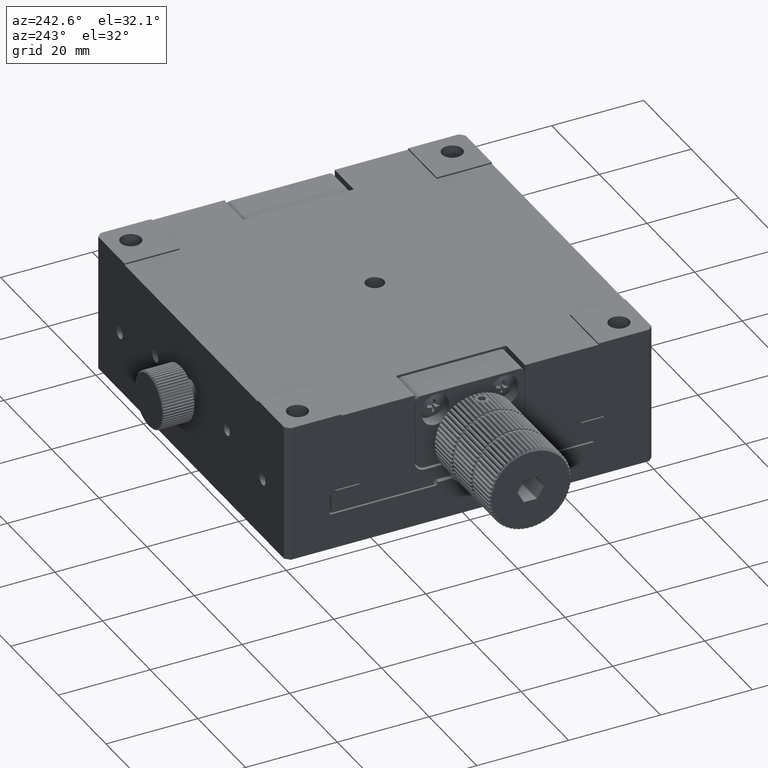
[diagram: clean part render]
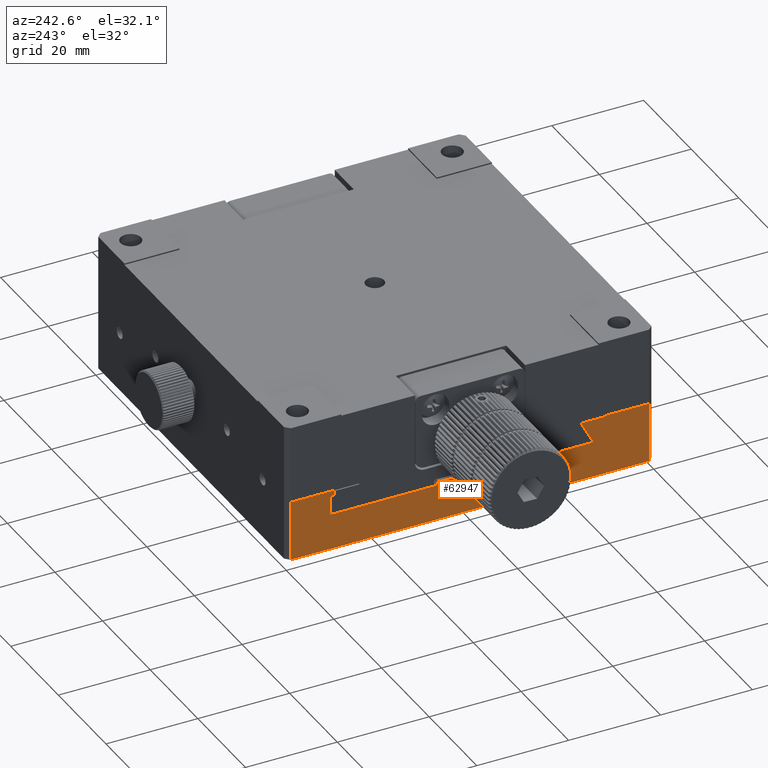
[diagram: same view with one face highlighted and labeled with its STEP entity id]
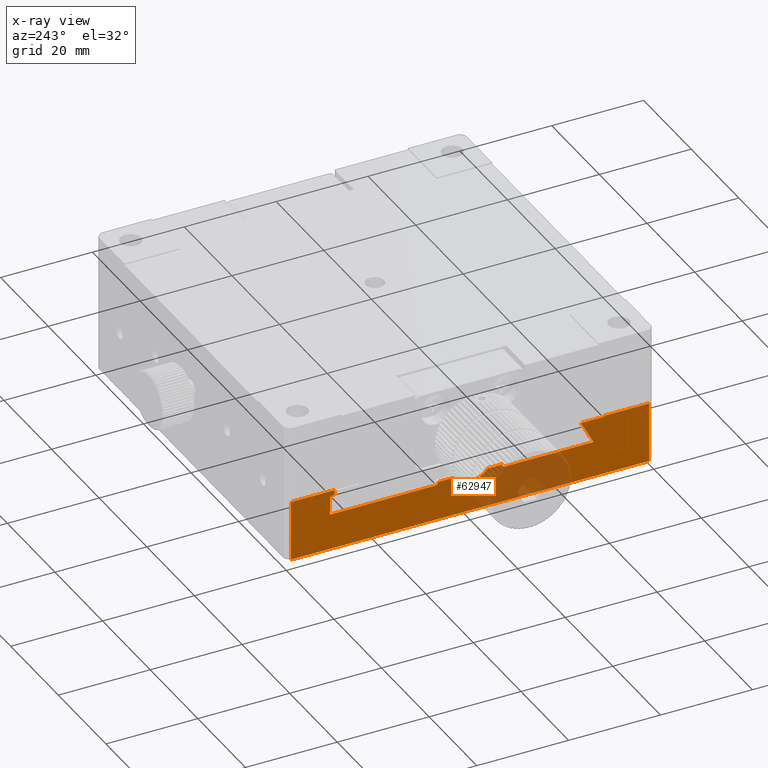
[diagram: x-ray of the same camera — body ghosted, the highlighted face saturated]
A machine part, auxiliary view. The second image highlights one B-rep face of the part: STEP entity #62947.
The next image is the same camera in x-ray: the body ghosted, the highlighted face saturated — about 22% of this face is hidden behind the body in this view.
In plain terms, the highlighted planar face has unit normal (-1, 0, -0).
Its self-contained STEP definition (entity closure, byte-faithful):
#315 = CARTESIAN_POINT ( 'NONE',  ( -40.00000000000002132, -40.00000000000002132, 107.8192932642392492 ) ) ;
#817 = EDGE_CURVE ( 'NONE', #7338, #53669, #73245, .T. ) ;
#824 = VERTEX_POINT ( 'NONE', #56651 ) ;
#1037 = LINE ( 'NONE', #64975, #35036 ) ;
#1233 = VECTOR ( 'NONE', #19808, 1000.000000000000000 ) ;
#1915 = CARTESIAN_POINT ( 'NONE',  ( -40.00000000000002132, -29.20000000000001705, 113.1370849898476081 ) ) ;
#2604 = LINE ( 'NONE', #18459, #64078 ) ;
#2885 = ORIENTED_EDGE ( 'NONE', *, *, #13421, .T. ) ;
#2972 = CARTESIAN_POINT ( 'NONE',  ( -40.00000000000002842, -40.00000000000002132, 125.0000000000000568 ) ) ;
#3909 = CARTESIAN_POINT ( 'NONE',  ( -40.00000000000002132, -29.20000000000000995, 112.9249308168926973 ) ) ;
#3953 = DIRECTION ( 'NONE',  ( 0.000000000000000000, 1.000000000000000000, 0.000000000000000000 ) ) ;
#4165 = VECTOR ( 'NONE', #39028, 1000.000000000000000 ) ;
#4168 = CARTESIAN_POINT ( 'NONE',  ( -40.00000000000002132, 0.7391285365091628812, 106.5825261218924425 ) ) ;
#4227 = CARTESIAN_POINT ( 'NONE',  ( -40.00000000000002132, -24.20000000000002061, 112.7695950211612512 ) ) ;
#4357 = EDGE_CURVE ( 'NONE', #84065, #51272, #29823, .T. ) ;
#4632 = DIRECTION ( 'NONE',  ( 0.000000000000000000, 1.000000000000000000, 0.000000000000000000 ) ) ;
#4732 = CARTESIAN_POINT ( 'NONE',  ( -40.00000000000002132, 6.999999999999999112, 108.4590245207838421 ) ) ;
#5264 = CARTESIAN_POINT ( 'NONE',  ( -40.00000000000002132, 6.999999999999999112, 108.3524342135421961 ) ) ;
#5598 = EDGE_CURVE ( 'NONE', #26488, #47550, #87186, .T. ) ;
#5708 = CARTESIAN_POINT ( 'NONE',  ( -40.00000000000002132, 7.363288766541595365, 107.8192932642390787 ) ) ;
#7338 = VERTEX_POINT ( 'NONE', #26564 ) ;
#7364 = CARTESIAN_POINT ( 'NONE',  ( -40.00000000000002132, -25.11568184768178114, 111.0867700637231650 ) ) ;
#7502 = LINE ( 'NONE', #82820, #40694 ) ;
#8395 = LINE ( 'NONE', #72306, #29227 ) ;
#8544 = LINE ( 'NONE', #23064, #37743 ) ;
#8889 = EDGE_CURVE ( 'NONE', #47550, #53208, #81204, .T. ) ;
#8957 = CARTESIAN_POINT ( 'NONE',  ( -40.00000000000002842, -7.500000000000000000, 107.8192932642391924 ) ) ;
#9186 = DIRECTION ( 'NONE',  ( -0.000000000000000000, -1.000000000000000000, -0.000000000000000000 ) ) ;
#9328 = ORIENTED_EDGE ( 'NONE', *, *, #817, .T. ) ;
#9470 = EDGE_CURVE ( 'NONE', #44711, #71612, #8544, .T. ) ;
#9710 = EDGE_CURVE ( 'NONE', #37673, #50197, #62460, .T. ) ;
#9738 = EDGE_CURVE ( 'NONE', #84065, #53669, #18389, .T. ) ;
#10611 = ORIENTED_EDGE ( 'NONE', *, *, #30014, .T. ) ;
#10993 = CARTESIAN_POINT ( 'NONE',  ( -40.00000000000000711, 1.810834734671203261, 106.8857735760713581 ) ) ;
#11610 = CARTESIAN_POINT ( 'NONE',  ( -40.00000000000001421, 7.231727419984811611, 107.8813984699809794 ) ) ;
#12529 = CARTESIAN_POINT ( 'NONE',  ( -40.00000000000000711, 7.000000000000001776, 108.2159972845793590 ) ) ;
#13109 = CARTESIAN_POINT ( 'NONE',  ( -40.00000000000002132, 7.500000000000000000, 107.8192932642390787 ) ) ;
#13355 = DIRECTION ( 'NONE',  ( 0.000000000000000000, -0.000000000000000000, -1.000000000000000000 ) ) ;
#13421 = EDGE_CURVE ( 'NONE', #77476, #824, #38350, .T. ) ;
#14549 = VECTOR ( 'NONE', #72807, 1000.000000000000000 ) ;
#16155 = FACE_OUTER_BOUND ( 'NONE', #26908, .T. ) ;
#17359 = CARTESIAN_POINT ( 'NONE',  ( -40.00000000000000711, 2.469327951288826206, 107.2186875522680793 ) ) ;
#18389 = LINE ( 'NONE', #80955, #14549 ) ;
#18459 = CARTESIAN_POINT ( 'NONE',  ( -40.00000000000002132, -40.00000000000002132, 113.1370849898475655 ) ) ;
#19364 = CARTESIAN_POINT ( 'NONE',  ( -40.00000000000002842, -39.00000000000002132, 125.0000000000000568 ) ) ;
#19753 = CARTESIAN_POINT ( 'NONE',  ( -40.00000000000000711, -3.841874542459711606, 108.4590245207838421 ) ) ;
#19808 = DIRECTION ( 'NONE',  ( -4.996003610813202460E-16, 0.000000000000000000, 1.000000000000000000 ) ) ;
#21200 = VERTEX_POINT ( 'NONE', #26721 ) ;
#21241 = VECTOR ( 'NONE', #28986, 1000.000000000000000 ) ;
#21272 = CARTESIAN_POINT ( 'NONE',  ( -40.00000000000002132, 38.99999999999998579, 113.1370849898475797 ) ) ;
#21280 = CARTESIAN_POINT ( 'NONE',  ( -40.00000000000002132, -6.999999999999999112, 108.4590245207838421 ) ) ;
#22378 = LINE ( 'NONE', #57294, #84522 ) ;
#22735 = CARTESIAN_POINT ( 'NONE',  ( -40.00000000000001421, -40.00000000000002132, 100.0000000000000284 ) ) ;
#23064 = CARTESIAN_POINT ( 'NONE',  ( -40.00000000000002842, 30.50000000000002842, 125.0000000000000568 ) ) ;
#23096 = ORIENTED_EDGE ( 'NONE', *, *, #44785, .T. ) ;
#23111 = B_SPLINE_CURVE_WITH_KNOTS ( 'NONE', 3,
 ( #5264, #12529, #54262, #11610, #5708, #87352 ),
 .UNSPECIFIED., .F., .F.,
 ( 4, 2, 4 ),
 ( 0.000000000000000000, 0.0004036139148981999917, 0.0008072278297963999833 ),
 .UNSPECIFIED. ) ;
#24171 = CARTESIAN_POINT ( 'NONE',  ( -40.00000000000001421, 1.456962389375552780, 106.7551012448363394 ) ) ;
#24468 = EDGE_CURVE ( 'NONE', #71612, #28024, #22378, .T. ) ;
#25063 = CARTESIAN_POINT ( 'NONE',  ( -40.00000000000000711, 2.780052747723102513, 107.4227530583921180 ) ) ;
#26488 = VERTEX_POINT ( 'NONE', #21280 ) ;
#26564 = CARTESIAN_POINT ( 'NONE',  ( -40.00000000000002132, -39.00000000000003553, 113.1370849898475939 ) ) ;
#26721 = CARTESIAN_POINT ( 'NONE',  ( -40.00000000000002132, 29.50000000000001776, 113.1370849898475939 ) ) ;
#26908 = EDGE_LOOP ( 'NONE', ( #34845, #2885, #78376, #10611, #9328, #80198, #31849, #42245, #46895, #63174, #87106, #63467, #48869, #81872, #23096, #63082, #75281, #86660, #46305, #62431, #46161 ) ) ;
#27984 = DIRECTION ( 'NONE',  ( 0.000000000000000000, 1.000000000000000000, 0.000000000000000000 ) ) ;
#28024 = VERTEX_POINT ( 'NONE', #29307 ) ;
#28986 = DIRECTION ( 'NONE',  ( 0.000000000000000000, 1.000000000000000000, 0.000000000000000000 ) ) ;
#28990 = CARTESIAN_POINT ( 'NONE',  ( -40.00000000000000711, -6.999999999999999112, 108.3524342135422671 ) ) ;
#29157 = DIRECTION ( 'NONE',  ( 0.000000000000000000, -0.000000000000000000, 1.000000000000000000 ) ) ;
#29227 = VECTOR ( 'NONE', #78229, 1000.000000000000000 ) ;
#29307 = CARTESIAN_POINT ( 'NONE',  ( -40.00000000000004263, 29.50000000000001776, 112.0758671614901800 ) ) ;
#29823 = LINE ( 'NONE', #42997, #47347 ) ;
#29829 = CARTESIAN_POINT ( 'NONE',  ( -40.00000000000002842, 29.50000000000001776, 0.000000000000000000 ) ) ;
#30014 = EDGE_CURVE ( 'NONE', #73076, #7338, #68801, .T. ) ;
#30118 = CARTESIAN_POINT ( 'NONE',  ( -40.00000000000000000, -1.814897832243790754, 106.8874692398195094 ) ) ;
#30674 = DIRECTION ( 'NONE',  ( -1.000000000000000000, 0.000000000000000000, -4.996003610813202460E-16 ) ) ;
#30907 = EDGE_CURVE ( 'NONE', #73076, #824, #72576, .T. ) ;
#30985 = CARTESIAN_POINT ( 'NONE',  ( -40.00000000000000000, -2.787629580817323482, 107.4284941003502638 ) ) ;
#31849 = ORIENTED_EDGE ( 'NONE', *, *, #4357, .T. ) ;
#33516 = EDGE_CURVE ( 'NONE', #59563, #44711, #78813, .T. ) ;
#33575 = CARTESIAN_POINT ( 'NONE',  ( -40.00000000000004263, -7.363471965574578171, 107.8192932642391213 ) ) ;
#34845 = ORIENTED_EDGE ( 'NONE', *, *, #36230, .T. ) ;
#35036 = VECTOR ( 'NONE', #29157, 1000.000000000000000 ) ;
#35221 = DIRECTION ( 'NONE',  ( 0.000000000000000000, 1.000000000000000000, 0.000000000000000000 ) ) ;
#36230 = EDGE_CURVE ( 'NONE', #21200, #77476, #2604, .T. ) ;
#36259 = DIRECTION ( 'NONE',  ( -4.996003610813202460E-16, 0.000000000000000000, 1.000000000000000000 ) ) ;
#36275 = CARTESIAN_POINT ( 'NONE',  ( -40.00000000000002132, -24.20000000000002061, 112.7695950211612512 ) ) ;
#36600 = DIRECTION ( 'NONE',  ( -4.996003610813202460E-16, 0.000000000000000000, 1.000000000000000000 ) ) ;
#37673 = VERTEX_POINT ( 'NONE', #74578 ) ;
#37741 = EDGE_CURVE ( 'NONE', #70350, #70443, #54640, .T. ) ;
#37743 = VECTOR ( 'NONE', #36259, 1000.000000000000000 ) ;
#38350 = LINE ( 'NONE', #44727, #49672 ) ;
#38665 = EDGE_CURVE ( 'NONE', #70443, #59563, #23111, .T. ) ;
#39028 = DIRECTION ( 'NONE',  ( 0.000000000000000000, 1.000000000000000000, 0.000000000000000000 ) ) ;
#39092 = B_SPLINE_CURVE_WITH_KNOTS ( 'NONE', 3,
 ( #4227, #7364, #76777, #61397 ),
 .UNSPECIFIED., .F., .F.,
 ( 4, 4 ),
 ( 0.000000000000000000, 1.000000000000000000 ),
 .UNSPECIFIED. ) ;
#40694 = VECTOR ( 'NONE', #35221, 1000.000000000000000 ) ;
#41076 = VECTOR ( 'NONE', #13355, 1000.000000000000000 ) ;
#42082 = DIRECTION ( 'NONE',  ( 0.000000000000000000, 1.000000000000000000, 0.000000000000000000 ) ) ;
#42163 = CARTESIAN_POINT ( 'NONE',  ( -40.00000000000003553, -7.231519560929863921, 107.8817687635257130 ) ) ;
#42245 = ORIENTED_EDGE ( 'NONE', *, *, #80730, .F. ) ;
#42997 = CARTESIAN_POINT ( 'NONE',  ( -40.00000000000002132, -40.00000000000002132, 112.9249308168926831 ) ) ;
#43072 = CARTESIAN_POINT ( 'NONE',  ( -40.00000000000004974, -7.000000000000004441, 108.2161337033800663 ) ) ;
#44711 = VERTEX_POINT ( 'NONE', #58379 ) ;
#44727 = CARTESIAN_POINT ( 'NONE',  ( -40.00000000000002842, 38.99999999999997868, 125.0000000000000568 ) ) ;
#44785 = EDGE_CURVE ( 'NONE', #53208, #70350, #7502, .T. ) ;
#45057 = CARTESIAN_POINT ( 'NONE',  ( -40.00000000000001421, 3.353926066803615935, 107.8982353553438713 ) ) ;
#45398 = CARTESIAN_POINT ( 'NONE',  ( -40.00000000000002132, 6.999999999999999112, 108.3524342135421961 ) ) ;
#45499 = CARTESIAN_POINT ( 'NONE',  ( -39.99999999999999289, 0.3729068628670099694, 106.5383704320334743 ) ) ;
#45957 = CARTESIAN_POINT ( 'NONE',  ( -40.00000000000002132, -40.00000000000002132, 108.4590245207838279 ) ) ;
#46161 = ORIENTED_EDGE ( 'NONE', *, *, #55741, .F. ) ;
#46305 = ORIENTED_EDGE ( 'NONE', *, *, #9470, .T. ) ;
#46895 = ORIENTED_EDGE ( 'NONE', *, *, #84675, .T. ) ;
#46979 = CARTESIAN_POINT ( 'NONE',  ( -40.00000000000003553, 30.50000000000002487, 112.0758671614901942 ) ) ;
#47347 = VECTOR ( 'NONE', #42082, 1000.000000000000000 ) ;
#47550 = VERTEX_POINT ( 'NONE', #19753 ) ;
#48192 = VERTEX_POINT ( 'NONE', #85231 ) ;
#48869 = ORIENTED_EDGE ( 'NONE', *, *, #5598, .T. ) ;
#49672 = VECTOR ( 'NONE', #72344, 1000.000000000000000 ) ;
#50197 = VERTEX_POINT ( 'NONE', #8957 ) ;
#51272 = VERTEX_POINT ( 'NONE', #70848 ) ;
#52267 = CARTESIAN_POINT ( 'NONE',  ( -39.99999999999999289, -3.611945702364735666, 108.1648000509913459 ) ) ;
#52710 = CARTESIAN_POINT ( 'NONE',  ( -40.00000000000002132, 3.841874542459704056, 108.4590245207838421 ) ) ;
#53208 = VERTEX_POINT ( 'NONE', #57356 ) ;
#53669 = VERTEX_POINT ( 'NONE', #1915 ) ;
#54262 = CARTESIAN_POINT ( 'NONE',  ( -40.00000000000002842, 7.049661341487209576, 108.0820318630875221 ) ) ;
#54640 = LINE ( 'NONE', #75470, #41076 ) ;
#55741 = EDGE_CURVE ( 'NONE', #21200, #28024, #85555, .T. ) ;
#56575 = VECTOR ( 'NONE', #27984, 1000.000000000000000 ) ;
#56651 = CARTESIAN_POINT ( 'NONE',  ( -40.00000000000001421, 38.99999999999998579, 100.0000000000000284 ) ) ;
#57294 = CARTESIAN_POINT ( 'NONE',  ( -40.00000000000005684, 40.00000000000003553, 112.0758671614901800 ) ) ;
#57356 = CARTESIAN_POINT ( 'NONE',  ( -40.00000000000002132, 3.841874542459704056, 108.4590245207838421 ) ) ;
#58379 = CARTESIAN_POINT ( 'NONE',  ( -40.00000000000002132, 30.50000000000002842, 107.8192932642390787 ) ) ;
#58633 = CARTESIAN_POINT ( 'NONE',  ( -40.00000000000000000, -2.472847665967417452, 107.2208296808092882 ) ) ;
#58840 = DIRECTION ( 'NONE',  ( 0.000000000000000000, 1.000000000000000000, 0.000000000000000000 ) ) ;
#59018 = B_SPLINE_CURVE_WITH_KNOTS ( 'NONE', 3,
 ( #88433, #33575, #42163, #89757, #43072, #28990 ),
 .UNSPECIFIED., .F., .F.,
 ( 4, 2, 4 ),
 ( 1.127570259384924611E-17, 0.0004036061166581143052, 0.0008072122333162173348 ),
 .UNSPECIFIED. ) ;
#59563 = VERTEX_POINT ( 'NONE', #13109 ) ;
#59677 = CARTESIAN_POINT ( 'NONE',  ( -40.00000000000001421, -39.00000000000002132, 100.0000000000000284 ) ) ;
#61397 = CARTESIAN_POINT ( 'NONE',  ( -40.00000000000002132, -26.88675134594809180, 107.8192932642392066 ) ) ;
#62431 = ORIENTED_EDGE ( 'NONE', *, *, #24468, .T. ) ;
#62460 = LINE ( 'NONE', #315, #56575 ) ;
#62947 = ADVANCED_FACE ( 'NONE', ( #16155 ), #65148, .T. ) ;
#63082 = ORIENTED_EDGE ( 'NONE', *, *, #37741, .T. ) ;
#63174 = ORIENTED_EDGE ( 'NONE', *, *, #9710, .T. ) ;
#63467 = ORIENTED_EDGE ( 'NONE', *, *, #83485, .T. ) ;
#64078 = VECTOR ( 'NONE', #58840, 1000.000000000000000 ) ;
#64975 = CARTESIAN_POINT ( 'NONE',  ( -40.00000000000001421, -7.000000000000000000, 0.000000000000000000 ) ) ;
#65148 = PLANE ( 'NONE',  #78219 ) ;
#65958 = EDGE_CURVE ( 'NONE', #50197, #48192, #59018, .T. ) ;
#68801 = LINE ( 'NONE', #19364, #1233 ) ;
#70350 = VERTEX_POINT ( 'NONE', #4732 ) ;
#70443 = VERTEX_POINT ( 'NONE', #45398 ) ;
#70848 = CARTESIAN_POINT ( 'NONE',  ( -40.00000000000002132, -24.20000000000000995, 112.9249308168926973 ) ) ;
#71612 = VERTEX_POINT ( 'NONE', #46979 ) ;
#72242 = CARTESIAN_POINT ( 'NONE',  ( -40.00000000000002132, -3.355156264322429305, 107.8997997625299519 ) ) ;
#72306 = CARTESIAN_POINT ( 'NONE',  ( -40.00000000000002842, -24.20000000000002061, 7.271202657890594277E-13 ) ) ;
#72344 = DIRECTION ( 'NONE',  ( 4.996003610813202460E-16, -0.000000000000000000, -1.000000000000000000 ) ) ;
#72576 = LINE ( 'NONE', #22735, #4165 ) ;
#72678 = CARTESIAN_POINT ( 'NONE',  ( -40.00000000000000000, 3.611895317950055251, 108.1647355774451569 ) ) ;
#72807 = DIRECTION ( 'NONE',  ( 0.000000000000000000, -0.000000000000000000, 1.000000000000000000 ) ) ;
#72893 = CARTESIAN_POINT ( 'NONE',  ( -40.00000000000002132, -40.00000000000002132, 107.8192932642390787 ) ) ;
#73076 = VERTEX_POINT ( 'NONE', #59677 ) ;
#73245 = LINE ( 'NONE', #87289, #21241 ) ;
#74578 = CARTESIAN_POINT ( 'NONE',  ( -40.00000000000002132, -26.88675134594809180, 107.8192932642392066 ) ) ;
#75281 = ORIENTED_EDGE ( 'NONE', *, *, #38665, .T. ) ;
#75470 = CARTESIAN_POINT ( 'NONE',  ( -40.00000000000001421, 7.000000000000000000, 0.000000000000000000 ) ) ;
#76777 = CARTESIAN_POINT ( 'NONE',  ( -40.00000000000002132, -26.01126562966446798, 109.4366694780825071 ) ) ;
#77476 = VERTEX_POINT ( 'NONE', #21272 ) ;
#78219 = AXIS2_PLACEMENT_3D ( 'NONE', #2972, #30674, #36600 ) ;
#78229 = DIRECTION ( 'NONE',  ( 0.000000000000000000, -0.000000000000000000, 1.000000000000000000 ) ) ;
#78321 = VECTOR ( 'NONE', #3953, 1000.000000000000000 ) ;
#78376 = ORIENTED_EDGE ( 'NONE', *, *, #30907, .F. ) ;
#78752 = DIRECTION ( 'NONE',  ( 0.000000000000000000, -0.000000000000000000, -1.000000000000000000 ) ) ;
#78813 = LINE ( 'NONE', #72893, #78321 ) ;
#79488 = CARTESIAN_POINT ( 'NONE',  ( -40.00000000000000711, -3.841874542459711606, 108.4590245207838421 ) ) ;
#79935 = CARTESIAN_POINT ( 'NONE',  ( -40.00000000000000000, -0.3747456505313700448, 106.5385172797845996 ) ) ;
#80198 = ORIENTED_EDGE ( 'NONE', *, *, #9738, .F. ) ;
#80730 = EDGE_CURVE ( 'NONE', #89675, #51272, #8395, .T. ) ;
#80955 = CARTESIAN_POINT ( 'NONE',  ( -40.00000000000002842, -29.20000000000002061, 0.000000000000000000 ) ) ;
#81204 = B_SPLINE_CURVE_WITH_KNOTS ( 'NONE', 3,
 ( #79488, #52267, #72242, #30985, #58633, #30118, #85404, #86288, #79935, #45499, #4168, #24171, #10993, #17359, #25063, #45057, #72678, #52710 ),
 .UNSPECIFIED., .F., .F.,
 ( 4, 2, 2, 2, 2, 2, 2, 2, 4 ),
 ( -0.004421346758804326274, -0.003316236560307173238, -0.002211126361810020636, -0.001106016163312868034, -9.059648157149977066E-07, 0.001104204233681438038, 0.002209314432178590207, 0.003314424630675743243, 0.004419534829172896279 ),
 .UNSPECIFIED. ) ;
#81872 = ORIENTED_EDGE ( 'NONE', *, *, #8889, .T. ) ;
#82225 = VECTOR ( 'NONE', #4632, 1000.000000000000000 ) ;
#82820 = CARTESIAN_POINT ( 'NONE',  ( -40.00000000000002132, -40.00000000000002132, 108.4590245207838279 ) ) ;
#83485 = EDGE_CURVE ( 'NONE', #48192, #26488, #1037, .T. ) ;
#84065 = VERTEX_POINT ( 'NONE', #3909 ) ;
#84522 = VECTOR ( 'NONE', #9186, 1000.000000000000000 ) ;
#84675 = EDGE_CURVE ( 'NONE', #89675, #37673, #39092, .T. ) ;
#85231 = CARTESIAN_POINT ( 'NONE',  ( -40.00000000000000711, -6.999999999999999112, 108.3524342135422671 ) ) ;
#85404 = CARTESIAN_POINT ( 'NONE',  ( -40.00000000000003553, -1.469748192226547179, 106.7589645017377080 ) ) ;
#85555 = LINE ( 'NONE', #29829, #89118 ) ;
#86288 = CARTESIAN_POINT ( 'NONE',  ( -40.00000000000004263, -0.7450356695829796205, 106.5831769497688128 ) ) ;
#86660 = ORIENTED_EDGE ( 'NONE', *, *, #33516, .T. ) ;
#87106 = ORIENTED_EDGE ( 'NONE', *, *, #65958, .T. ) ;
#87186 = LINE ( 'NONE', #45957, #82225 ) ;
#87289 = CARTESIAN_POINT ( 'NONE',  ( -40.00000000000002132, -40.00000000000002132, 113.1370849898476081 ) ) ;
#87352 = CARTESIAN_POINT ( 'NONE',  ( -40.00000000000002132, 7.500000000000000000, 107.8192932642390787 ) ) ;
#88433 = CARTESIAN_POINT ( 'NONE',  ( -40.00000000000002842, -7.500000000000000000, 107.8192932642391924 ) ) ;
#89118 = VECTOR ( 'NONE', #78752, 1000.000000000000000 ) ;
#89675 = VERTEX_POINT ( 'NONE', #36275 ) ;
#89757 = CARTESIAN_POINT ( 'NONE',  ( -40.00000000000004263, -7.050360902697411447, 108.0811201059846240 ) ) ;